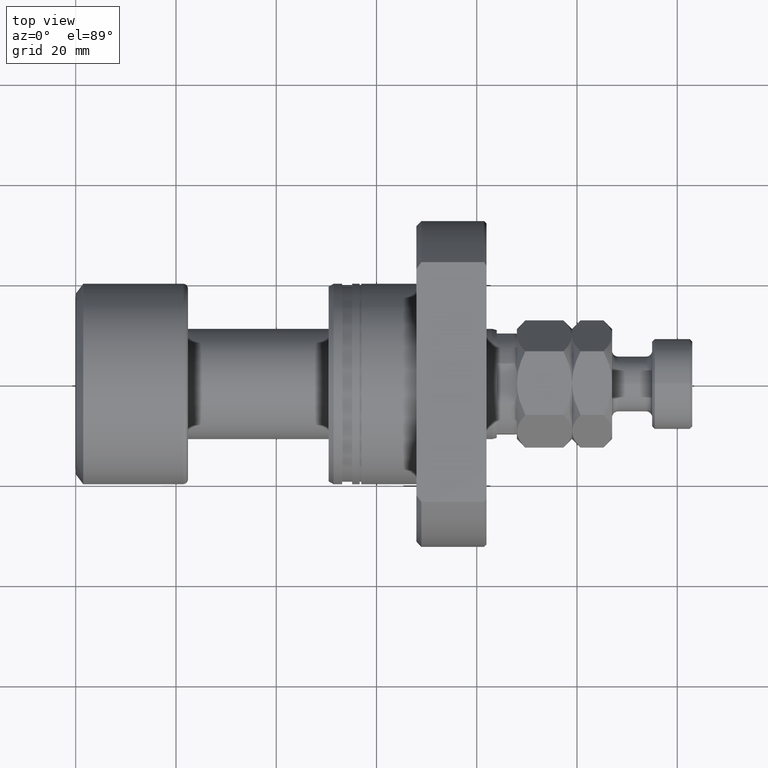
[diagram: clean part render]
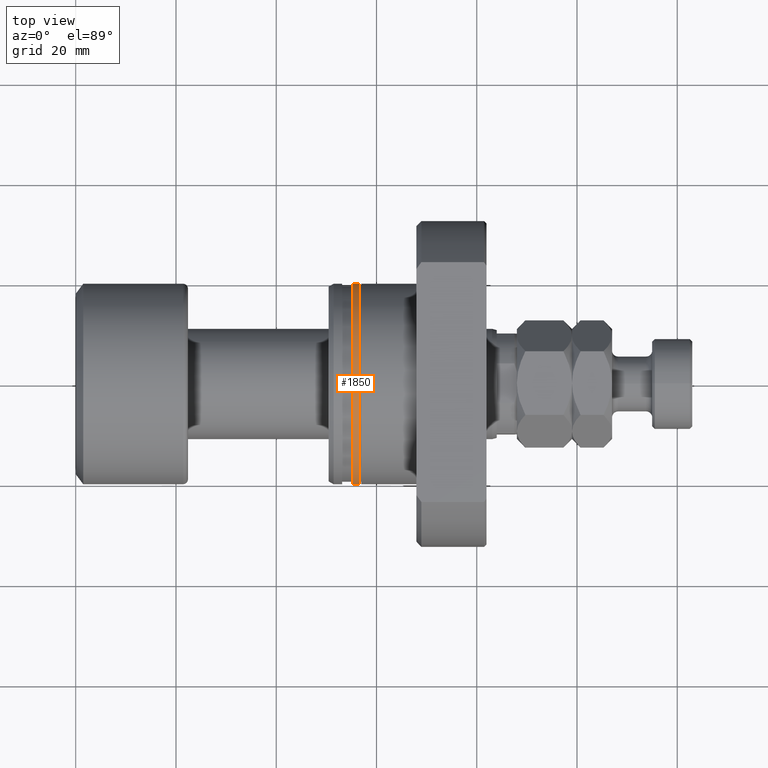
[diagram: same view with one face highlighted and labeled with its STEP entity id]
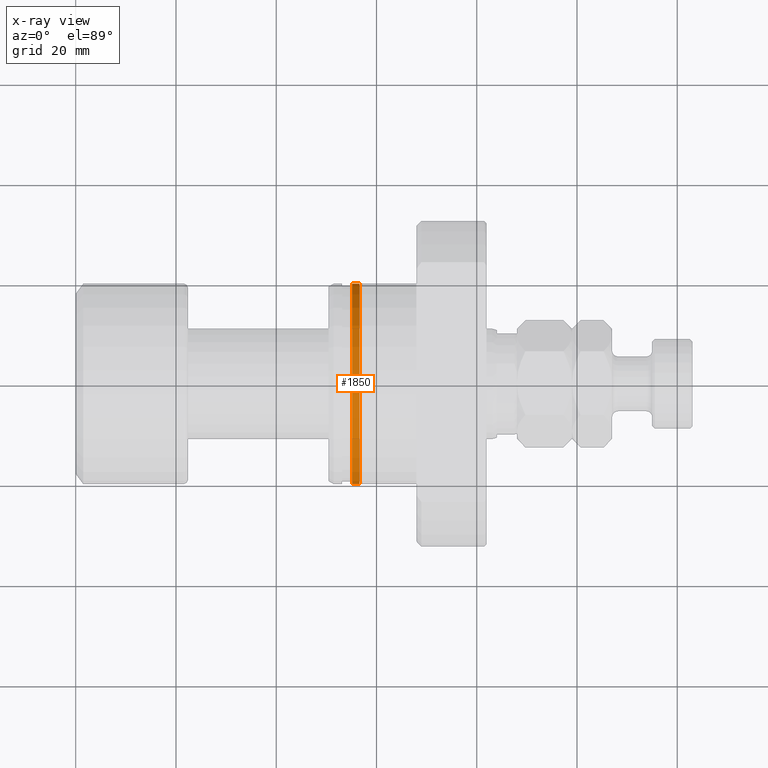
[diagram: x-ray of the same camera — body ghosted, the highlighted face saturated]
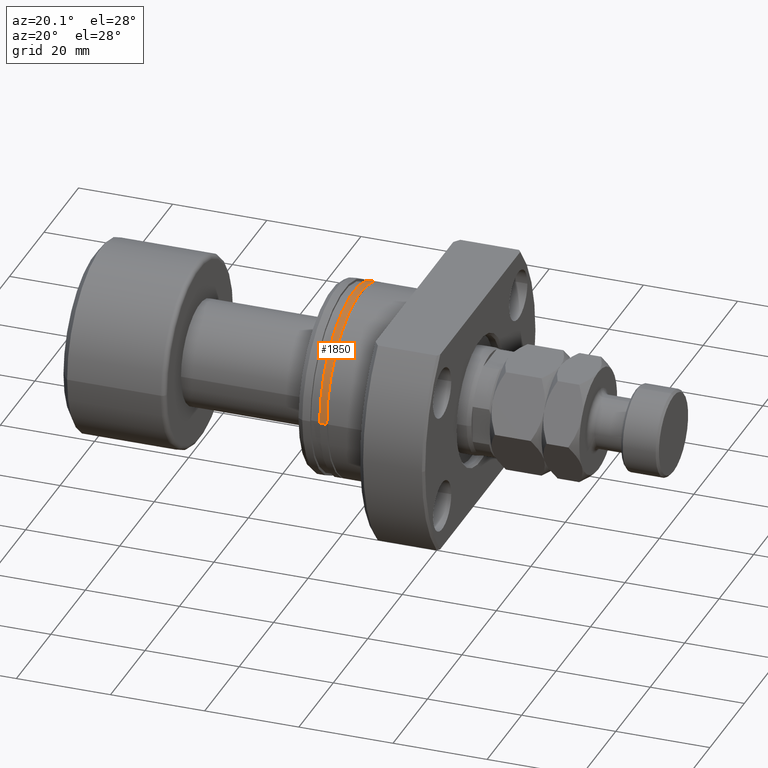
[diagram: same view with one face highlighted and labeled with its STEP entity id]
A machine part, top view. The second image highlights one B-rep face of the part: STEP entity #1850.
The next image is the same camera in x-ray: the body ghosted, the highlighted face saturated — about 0% of this face is hidden behind the body in this view.
A second angle (auxiliary view) of the same face is appended — the face is thin or edge-on in the first view.
In plain terms, the highlighted cylindrical surface (partial cylindrical patch) has radius 20 mm, axis along (1, 0, 0).
Its self-contained STEP definition (entity closure, byte-faithful):
#34 = EDGE_CURVE ( 'NONE', #3846, #2298, #2961, .T. ) ;
#79 = CARTESIAN_POINT ( 'NONE',  ( 4.699999999998549782, -19.99999999999999645, 2.449293598294706119E-15 ) ) ;
#170 = DIRECTION ( 'NONE',  ( -4.336808689942018352E-17, 1.000000000000000000, 0.000000000000000000 ) ) ;
#373 = CIRCLE ( 'NONE', #1656, 19.99999999999999645 ) ;
#482 = EDGE_CURVE ( 'NONE', #2049, #2298, #1479, .T. ) ;
#537 = DIRECTION ( 'NONE',  ( -4.336808689942018352E-17, 1.000000000000000000, 0.000000000000000000 ) ) ;
#559 = DIRECTION ( 'NONE',  ( 1.000000000000000000, 2.721437331438560389E-17, -0.000000000000000000 ) ) ;
#1105 = DIRECTION ( 'NONE',  ( 1.000000000000000000, 2.721437331438560389E-17, -0.000000000000000000 ) ) ;
#1152 = DIRECTION ( 'NONE',  ( 1.000000000000000000, 2.721437331438560389E-17, -0.000000000000000000 ) ) ;
#1418 = CARTESIAN_POINT ( 'NONE',  ( 31.50000000000000000, 8.572527594031465301E-16, 0.000000000000000000 ) ) ;
#1479 = LINE ( 'NONE', #2611, #2480 ) ;
#1559 = AXIS2_PLACEMENT_3D ( 'NONE', #3894, #559, #537 ) ;
#1634 = EDGE_LOOP ( 'NONE', ( #4030, #3302, #4817, #2068 ) ) ;
#1656 = AXIS2_PLACEMENT_3D ( 'NONE', #3597, #4733, #170 ) ;
#1831 = VERTEX_POINT ( 'NONE', #3994 ) ;
#1850 = ADVANCED_FACE ( 'NONE', ( #4841 ), #2570, .T. ) ;
#1857 = DIRECTION ( 'NONE',  ( 1.000000000000000000, 2.721437331438560389E-17, -0.000000000000000000 ) ) ;
#2049 = VERTEX_POINT ( 'NONE', #79 ) ;
#2068 = ORIENTED_EDGE ( 'NONE', *, *, #2309, .F. ) ;
#2258 = AXIS2_PLACEMENT_3D ( 'NONE', #1418, #1857, #4071 ) ;
#2298 = VERTEX_POINT ( 'NONE', #4008 ) ;
#2309 = EDGE_CURVE ( 'NONE', #1831, #3846, #4161, .T. ) ;
#2480 = VECTOR ( 'NONE', #1105, 1000.000000000000000 ) ;
#2570 = CYLINDRICAL_SURFACE ( 'NONE', #2258, 19.99999999999999645 ) ;
#2611 = CARTESIAN_POINT ( 'NONE',  ( 31.50000000000000000, -19.99999999999999645, 2.449293598294706119E-15 ) ) ;
#2877 = EDGE_CURVE ( 'NONE', #1831, #2049, #373, .T. ) ;
#2961 = CIRCLE ( 'NONE', #1559, 19.99999999999999645 ) ;
#3021 = CARTESIAN_POINT ( 'NONE',  ( 6.200000000001034017, 19.99999999999999645, 0.000000000000000000 ) ) ;
#3207 = VECTOR ( 'NONE', #1152, 1000.000000000000000 ) ;
#3302 = ORIENTED_EDGE ( 'NONE', *, *, #482, .T. ) ;
#3597 = CARTESIAN_POINT ( 'NONE',  ( 4.699999999998548894, 1.279075545775728376E-16, 0.000000000000000000 ) ) ;
#3846 = VERTEX_POINT ( 'NONE', #3021 ) ;
#3894 = CARTESIAN_POINT ( 'NONE',  ( 6.200000000001034905, 1.687291145492188405E-16, 0.000000000000000000 ) ) ;
#3994 = CARTESIAN_POINT ( 'NONE',  ( 4.699999999998548006, 19.99999999999999645, 0.000000000000000000 ) ) ;
#4008 = CARTESIAN_POINT ( 'NONE',  ( 6.200000000001035794, -19.99999999999999645, 2.449293598294706119E-15 ) ) ;
#4030 = ORIENTED_EDGE ( 'NONE', *, *, #2877, .T. ) ;
#4071 = DIRECTION ( 'NONE',  ( 0.000000000000000000, 1.000000000000000000, 0.000000000000000000 ) ) ;
#4161 = LINE ( 'NONE', #4527, #3207 ) ;
#4527 = CARTESIAN_POINT ( 'NONE',  ( 31.50000000000000000, 19.99999999999999645, 0.000000000000000000 ) ) ;
#4733 = DIRECTION ( 'NONE',  ( 1.000000000000000000, 2.721437331438560389E-17, -0.000000000000000000 ) ) ;
#4817 = ORIENTED_EDGE ( 'NONE', *, *, #34, .F. ) ;
#4841 = FACE_OUTER_BOUND ( 'NONE', #1634, .T. ) ;